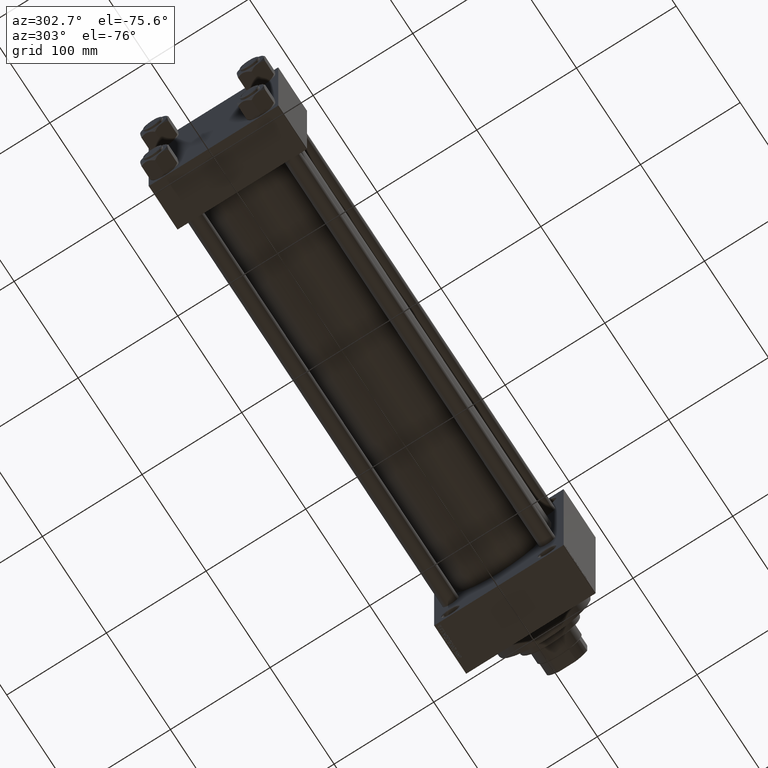
[diagram: clean part render]
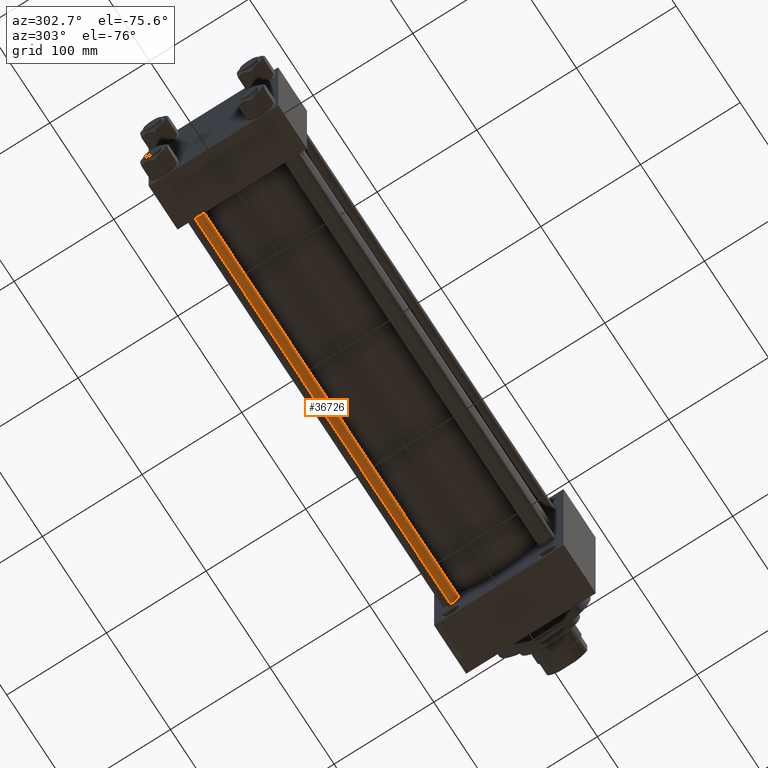
[diagram: same view with one face highlighted and labeled with its STEP entity id]
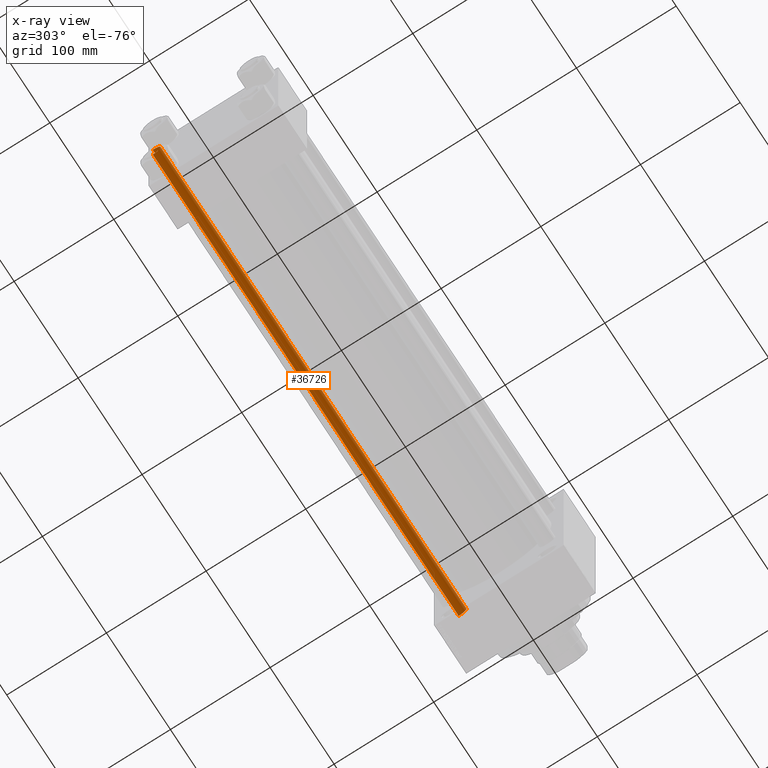
[diagram: x-ray of the same camera — body ghosted, the highlighted face saturated]
A machine part, auxiliary view. The second image highlights one B-rep face of the part: STEP entity #36726.
The next image is the same camera in x-ray: the body ghosted, the highlighted face saturated — about 0% of this face is hidden behind the body in this view.
In plain terms, the highlighted cylindrical surface (edge-blend (fillet) strip) has radius 8 mm, axis along (-1, -0, 0).
Its self-contained STEP definition (entity closure, byte-faithful):
#3674 = VERTEX_POINT ( 'NONE', #8795 ) ;
#4873 = CARTESIAN_POINT ( 'NONE',  ( 0.000000000000000000, 0.000000000000000000, 479.0000000000000000 ) ) ;
#5969 = DIRECTION ( 'NONE',  ( -0.000000000000000000, -0.000000000000000000, -1.000000000000000000 ) ) ;
#6754 = VERTEX_POINT ( 'NONE', #20762 ) ;
#6929 = DIRECTION ( 'NONE',  ( -0.000000000000000000, -0.000000000000000000, -1.000000000000000000 ) ) ;
#7365 = FACE_OUTER_BOUND ( 'NONE', #35600, .T. ) ;
#8795 = CARTESIAN_POINT ( 'NONE',  ( 8.000000000000000000, 9.797174393178825657E-16, 0.5000000000000004441 ) ) ;
#9636 = VECTOR ( 'NONE', #6929, 1000.000000000000000 ) ;
#9953 = EDGE_CURVE ( 'NONE', #35859, #3674, #10068, .T. ) ;
#10068 = LINE ( 'NONE', #18013, #9636 ) ;
#11340 = CIRCLE ( 'NONE', #30587, 8.000000000000000000 ) ;
#11890 = VERTEX_POINT ( 'NONE', #23507 ) ;
#13660 = AXIS2_PLACEMENT_3D ( 'NONE', #4873, #21566, #43773 ) ;
#14827 = CYLINDRICAL_SURFACE ( 'NONE', #13660, 8.000000000000000000 ) ;
#16533 = DIRECTION ( 'NONE',  ( 0.000000000000000000, 0.000000000000000000, -1.000000000000000000 ) ) ;
#17237 = DIRECTION ( 'NONE',  ( -0.000000000000000000, -0.000000000000000000, 1.000000000000000000 ) ) ;
#18013 = CARTESIAN_POINT ( 'NONE',  ( 8.000000000000000000, 9.797174393178825657E-16, 479.0000000000000000 ) ) ;
#18707 = ORIENTED_EDGE ( 'NONE', *, *, #41617, .T. ) ;
#19222 = CARTESIAN_POINT ( 'NONE',  ( 0.000000000000000000, 0.000000000000000000, 478.5000000000000000 ) ) ;
#20762 = CARTESIAN_POINT ( 'NONE',  ( -8.000000000000000000, 0.000000000000000000, 478.5000000000000000 ) ) ;
#21566 = DIRECTION ( 'NONE',  ( -0.000000000000000000, -0.000000000000000000, -1.000000000000000000 ) ) ;
#23507 = CARTESIAN_POINT ( 'NONE',  ( -8.000000000000000000, 0.000000000000000000, 0.5000000000000004441 ) ) ;
#23574 = LINE ( 'NONE', #27425, #27580 ) ;
#26173 = EDGE_CURVE ( 'NONE', #11890, #3674, #29604, .T. ) ;
#27384 = DIRECTION ( 'NONE',  ( 1.000000000000000000, 0.000000000000000000, 0.000000000000000000 ) ) ;
#27425 = CARTESIAN_POINT ( 'NONE',  ( -8.000000000000000000, 0.000000000000000000, 479.0000000000000000 ) ) ;
#27580 = VECTOR ( 'NONE', #5969, 1000.000000000000000 ) ;
#29604 = CIRCLE ( 'NONE', #38853, 8.000000000000000000 ) ;
#30587 = AXIS2_PLACEMENT_3D ( 'NONE', #19222, #16533, #27384 ) ;
#32149 = ORIENTED_EDGE ( 'NONE', *, *, #36507, .T. ) ;
#35600 = EDGE_LOOP ( 'NONE', ( #46461, #32149, #18707, #35867 ) ) ;
#35859 = VERTEX_POINT ( 'NONE', #45891 ) ;
#35867 = ORIENTED_EDGE ( 'NONE', *, *, #26173, .T. ) ;
#36507 = EDGE_CURVE ( 'NONE', #35859, #6754, #11340, .T. ) ;
#36726 = ADVANCED_FACE ( 'NONE', ( #7365 ), #14827, .T. ) ;
#38853 = AXIS2_PLACEMENT_3D ( 'NONE', #46885, #17237, #46652 ) ;
#41617 = EDGE_CURVE ( 'NONE', #6754, #11890, #23574, .T. ) ;
#43773 = DIRECTION ( 'NONE',  ( -1.000000000000000000, 0.000000000000000000, 0.000000000000000000 ) ) ;
#45891 = CARTESIAN_POINT ( 'NONE',  ( 8.000000000000000000, 9.797174393178825657E-16, 478.5000000000000000 ) ) ;
#46461 = ORIENTED_EDGE ( 'NONE', *, *, #9953, .F. ) ;
#46652 = DIRECTION ( 'NONE',  ( 1.000000000000000000, 0.000000000000000000, 0.000000000000000000 ) ) ;
#46885 = CARTESIAN_POINT ( 'NONE',  ( 0.000000000000000000, 0.000000000000000000, 0.5000000000000004441 ) ) ;